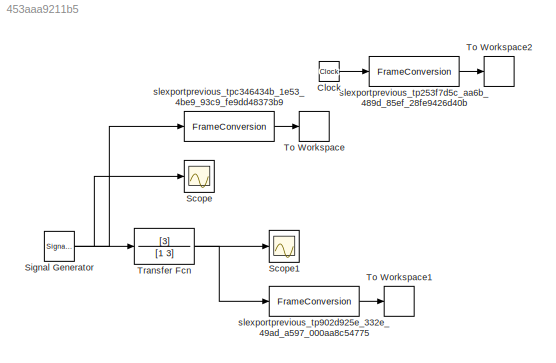
MODEL slx_453aaa9211b5
KIND model
BLOCK [Clock] Clock
BLOCK [Scope] Scope
  DataFormat = StructureWithTime
  Decimation = 1
  Floating = off
  Grid = on
  LimitDataPoints = off
  MaxDataPoints = 5000
  NumInputPorts = 1
  Ports = [1]
  SampleInput = off
  SampleTime = -1
  SaveName = ScopeData
  SaveToWorkspace = off
  ShowLegends = off
  TickLabels = OneTimeTick
  TimeRange = auto
  YMax = 1.25
  YMin = -1.25
  ZoomMode = on
BLOCK [Scope] Scope1
  DataFormat = StructureWithTime
  Decimation = 1
  Floating = off
  Grid = on
  LimitDataPoints = off
  MaxDataPoints = 5000
  NumInputPorts = 1
  Ports = [1]
  SampleInput = off
  SampleTime = -1
  SaveName = ScopeData1
  SaveToWorkspace = off
  ShowLegends = off
  TickLabels = OneTimeTick
  TimeRange = auto
  YMax = 1.24419
  YMin = -1.2464
  ZoomMode = on
BLOCK [SignalGenerator] Signal Generator
  Frequency = 0.25
  Ports = [0, 1]
  WaveForm = square
BLOCK [ToWorkspace] To Workspace
  FixptAsFi = on
  MaxDataPoints = inf
  Ports = [1]
  SampleTime = -1
  VariableName = ulaz
BLOCK [ToWorkspace] To Workspace1
  FixptAsFi = on
  MaxDataPoints = inf
  Ports = [1]
  SampleTime = -1
  VariableName = izlaz
BLOCK [ToWorkspace] To Workspace2
  FixptAsFi = on
  MaxDataPoints = inf
  Ports = [1]
  SampleTime = -1
  VariableName = t
BLOCK [TransferFcn] Transfer Fcn
  Denominator = [1 3]
  Numerator = [3]
BLOCK [FrameConversion] slexportprevious_tp253f7d5c_aa6b_489d_85ef_28fe9426d40b
  OutFrame = Sample-based
  Ports = [1, 1]
BLOCK [FrameConversion] slexportprevious_tp902d925e_332e_49ad_a597_000aa8c54775
  OutFrame = Sample-based
  Ports = [1, 1]
BLOCK [FrameConversion] slexportprevious_tpc346434b_1e53_4be9_93c9_fe9dd48373b9
  OutFrame = Sample-based
  Ports = [1, 1]
LINE Clock:1 -> slexportprevious_tp253f7d5c_aa6b_489d_85ef_28fe9426d40b:1
NET Signal Generator:1 -> Scope:1, Transfer Fcn:1, slexportprevious_tpc346434b_1e53_4be9_93c9_fe9dd48373b9:1
NET Transfer Fcn:1 -> Scope1:1, slexportprevious_tp902d925e_332e_49ad_a597_000aa8c54775:1
LINE slexportprevious_tp253f7d5c_aa6b_489d_85ef_28fe9426d40b:1 -> To Workspace2:1
LINE slexportprevious_tp902d925e_332e_49ad_a597_000aa8c54775:1 -> To Workspace1:1
LINE slexportprevious_tpc346434b_1e53_4be9_93c9_fe9dd48373b9:1 -> To Workspace:1
note: NET lines group one-source signal fan-out (src -> all destinations, sorted); 1:1 wires keep LINE
